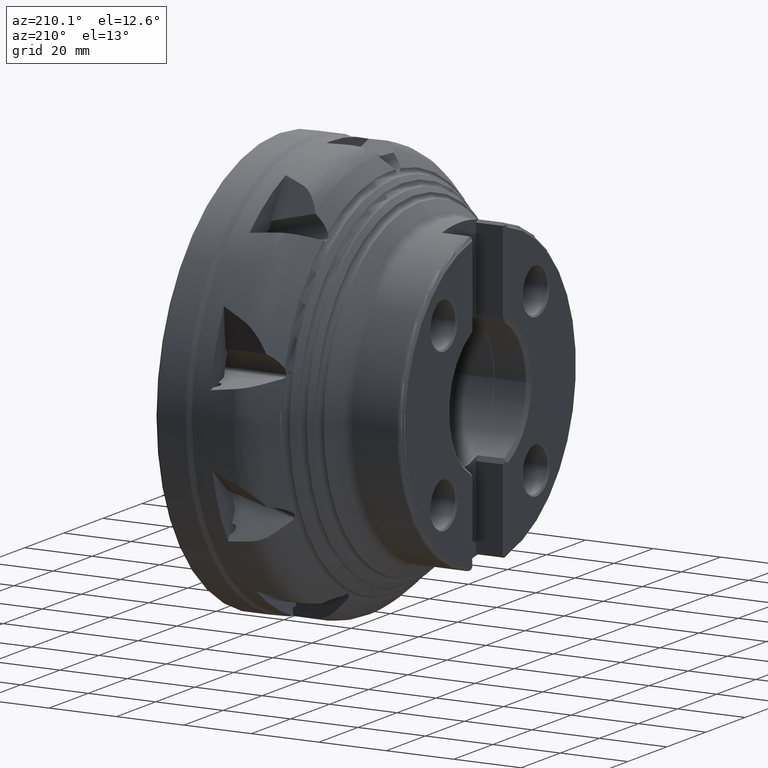
[diagram: clean part render]
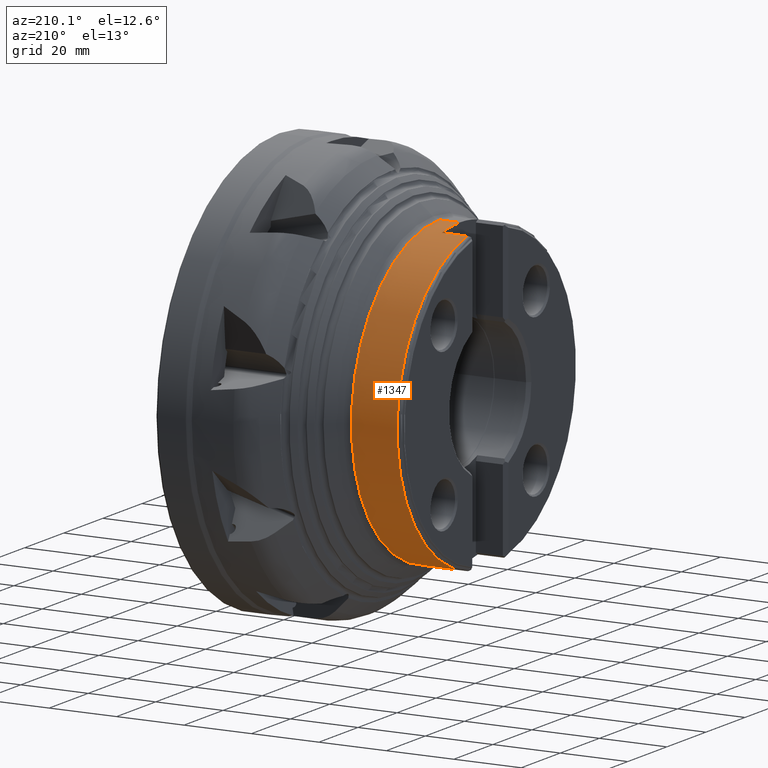
[diagram: same view with one face highlighted and labeled with its STEP entity id]
A machine part, auxiliary view. The second image highlights one B-rep face of the part: STEP entity #1347.
In plain terms, the highlighted cylindrical surface (partial cylindrical patch) has radius 45 mm, axis along (1, -0, -0).
Its self-contained STEP definition (entity closure, byte-faithful):
#1347 = ADVANCED_FACE ( 'NONE', ( #8663 ), #8666, .T. ) ;
#1696 = CARTESIAN_POINT ( 'NONE',  ( 0.0000000000000000000, 0.0000000000000000000, 0.0000000000000000000 ) ) ;
#1701 = DIRECTION ( 'NONE',  ( 0.0000000000000000000, 0.0000000000000000000, -1.000000000000000000 ) ) ;
#1702 = DIRECTION ( 'NONE',  ( 1.000000000000000000, -0.0000000000000000000, -0.0000000000000000000 ) ) ;
#4582 = EDGE_CURVE ( 'NONE', #16225, #16223, #10662, .T. ) ;
#4583 = EDGE_CURVE ( 'NONE', #16227, #16226, #10665, .T. ) ;
#4584 = EDGE_CURVE ( 'NONE', #16227, #16228, #10663, .T. ) ;
#4585 = EDGE_CURVE ( 'NONE', #16233, #16223, #10648, .T. ) ;
#4586 = EDGE_CURVE ( 'NONE', #16233, #16232, #10675, .T. ) ;
#4587 = EDGE_CURVE ( 'NONE', #16226, #16225, #10656, .T. ) ;
#4588 = EDGE_CURVE ( 'NONE', #16228, #16229, #10681, .T. ) ;
#4589 = EDGE_CURVE ( 'NONE', #16229, #16232, #10672, .T. ) ;
#6276 = ORIENTED_EDGE ( 'NONE', *, *, #4586, .F. ) ;
#6280 = ORIENTED_EDGE ( 'NONE', *, *, #4589, .T. ) ;
#6281 = ORIENTED_EDGE ( 'NONE', *, *, #4588, .T. ) ;
#6282 = ORIENTED_EDGE ( 'NONE', *, *, #4584, .T. ) ;
#6283 = ORIENTED_EDGE ( 'NONE', *, *, #4583, .F. ) ;
#6284 = ORIENTED_EDGE ( 'NONE', *, *, #4587, .F. ) ;
#6285 = ORIENTED_EDGE ( 'NONE', *, *, #4582, .F. ) ;
#6286 = ORIENTED_EDGE ( 'NONE', *, *, #4585, .T. ) ;
#7173 = CARTESIAN_POINT ( 'NONE',  ( -46.18412581000001200, 5.553530612669477700E-015, 44.99999999999998600 ) ) ;
#7175 = CARTESIAN_POINT ( 'NONE',  ( -46.18412581000001200, 0.0000000000000000000, -44.99999999999998600 ) ) ;
#7176 = CARTESIAN_POINT ( 'NONE',  ( -52.25000000000001400, 0.0000000000000000000, -44.99999999999998600 ) ) ;
#7177 = CARTESIAN_POINT ( 'NONE',  ( -52.25000000000001400, 9.170586121755620800, -44.05565060447367600 ) ) ;
#7178 = CARTESIAN_POINT ( 'NONE',  ( -59.75000000000001400, 9.170586121755627900, -44.05565060447368400 ) ) ;
#7179 = CARTESIAN_POINT ( 'NONE',  ( -59.75000000000001400, 9.170586121755622600, 44.05565060447368400 ) ) ;
#7182 = CARTESIAN_POINT ( 'NONE',  ( -52.25000000000001400, 9.170586121755620800, 44.05565060447367600 ) ) ;
#7183 = CARTESIAN_POINT ( 'NONE',  ( -52.25000000000001400, 5.510910596163087200E-015, 44.99999999999998600 ) ) ;
#8250 = EDGE_LOOP ( 'NONE', ( #6276, #6286, #6285, #6284, #6283, #6282, #6281, #6280 ) ) ;
#8663 = FACE_OUTER_BOUND ( 'NONE', #8250, .T. ) ;
#8666 = CYLINDRICAL_SURFACE ( 'NONE', #9606, 44.99999999999998600 ) ;
#9606 = AXIS2_PLACEMENT_3D ( 'NONE', #1696, #1702, #1701 ) ;
#10636 = VECTOR ( 'NONE', #13087, 1000.000000000000000 ) ;
#10648 = LINE ( 'NONE', #12633, #10668 ) ;
#10656 = LINE ( 'NONE', #13086, #10636 ) ;
#10659 = VECTOR ( 'NONE', #12634, 1000.000000000000000 ) ;
#10662 = CIRCLE ( 'NONE', #12899, 44.99999999999998600 ) ;
#10663 = LINE ( 'NONE', #12627, #10659 ) ;
#10665 = CIRCLE ( 'NONE', #12901, 44.99999999999998600 ) ;
#10668 = VECTOR ( 'NONE', #13080, 1000.000000000000000 ) ;
#10669 = VECTOR ( 'NONE', #13095, 1000.000000000000000 ) ;
#10672 = LINE ( 'NONE', #13094, #10669 ) ;
#10675 = CIRCLE ( 'NONE', #12891, 44.99999999999998600 ) ;
#10681 = CIRCLE ( 'NONE', #12903, 44.99999999999999300 ) ;
#12625 = CARTESIAN_POINT ( 'NONE',  ( -46.18412581000001200, 0.0000000000000000000, 0.0000000000000000000 ) ) ;
#12627 = CARTESIAN_POINT ( 'NONE',  ( 0.0000000000000000000, 9.170586121755622600, -44.05565060447368400 ) ) ;
#12628 = DIRECTION ( 'NONE',  ( 1.000000000000000000, -0.0000000000000000000, -0.0000000000000000000 ) ) ;
#12629 = DIRECTION ( 'NONE',  ( 0.0000000000000000000, 0.0000000000000000000, -1.000000000000000000 ) ) ;
#12630 = CARTESIAN_POINT ( 'NONE',  ( -52.25000000000001400, 0.0000000000000000000, 0.0000000000000000000 ) ) ;
#12631 = DIRECTION ( 'NONE',  ( -1.000000000000000000, -0.0000000000000000000, -0.0000000000000000000 ) ) ;
#12632 = DIRECTION ( 'NONE',  ( 0.0000000000000000000, 7.993605777301127100E-015, -1.000000000000000000 ) ) ;
#12633 = CARTESIAN_POINT ( 'NONE',  ( 0.0000000000000000000, 5.510910596163087200E-015, 44.99999999999998600 ) ) ;
#12634 = DIRECTION ( 'NONE',  ( -1.000000000000000000, 0.0000000000000000000, 0.0000000000000000000 ) ) ;
#12891 = AXIS2_PLACEMENT_3D ( 'NONE', #13078, #13081, #13082 ) ;
#12899 = AXIS2_PLACEMENT_3D ( 'NONE', #12625, #12628, #12629 ) ;
#12901 = AXIS2_PLACEMENT_3D ( 'NONE', #12630, #12631, #12632 ) ;
#12903 = AXIS2_PLACEMENT_3D ( 'NONE', #13088, #13090, #13091 ) ;
#13078 = CARTESIAN_POINT ( 'NONE',  ( -52.25000000000001400, 0.0000000000000000000, 0.0000000000000000000 ) ) ;
#13080 = DIRECTION ( 'NONE',  ( 1.000000000000000000, -0.0000000000000000000, -0.0000000000000000000 ) ) ;
#13081 = DIRECTION ( 'NONE',  ( -1.000000000000000000, -0.0000000000000000000, -0.0000000000000000000 ) ) ;
#13082 = DIRECTION ( 'NONE',  ( 0.0000000000000000000, 0.0000000000000000000, -1.000000000000000000 ) ) ;
#13086 = CARTESIAN_POINT ( 'NONE',  ( 0.0000000000000000000, 0.0000000000000000000, -44.99999999999998600 ) ) ;
#13087 = DIRECTION ( 'NONE',  ( 1.000000000000000000, -0.0000000000000000000, -0.0000000000000000000 ) ) ;
#13088 = CARTESIAN_POINT ( 'NONE',  ( -59.75000000000001400, 0.0000000000000000000, 0.0000000000000000000 ) ) ;
#13090 = DIRECTION ( 'NONE',  ( 1.000000000000000000, -0.0000000000000000000, -0.0000000000000000000 ) ) ;
#13091 = DIRECTION ( 'NONE',  ( 0.0000000000000000000, 0.0000000000000000000, -1.000000000000000000 ) ) ;
#13094 = CARTESIAN_POINT ( 'NONE',  ( 0.0000000000000000000, 9.170586121755622600, 44.05565060447368400 ) ) ;
#13095 = DIRECTION ( 'NONE',  ( 1.000000000000000000, -0.0000000000000000000, -0.0000000000000000000 ) ) ;
#16223 = VERTEX_POINT ( 'NONE', #7173 ) ;
#16225 = VERTEX_POINT ( 'NONE', #7175 ) ;
#16226 = VERTEX_POINT ( 'NONE', #7176 ) ;
#16227 = VERTEX_POINT ( 'NONE', #7177 ) ;
#16228 = VERTEX_POINT ( 'NONE', #7178 ) ;
#16229 = VERTEX_POINT ( 'NONE', #7179 ) ;
#16232 = VERTEX_POINT ( 'NONE', #7182 ) ;
#16233 = VERTEX_POINT ( 'NONE', #7183 ) ;